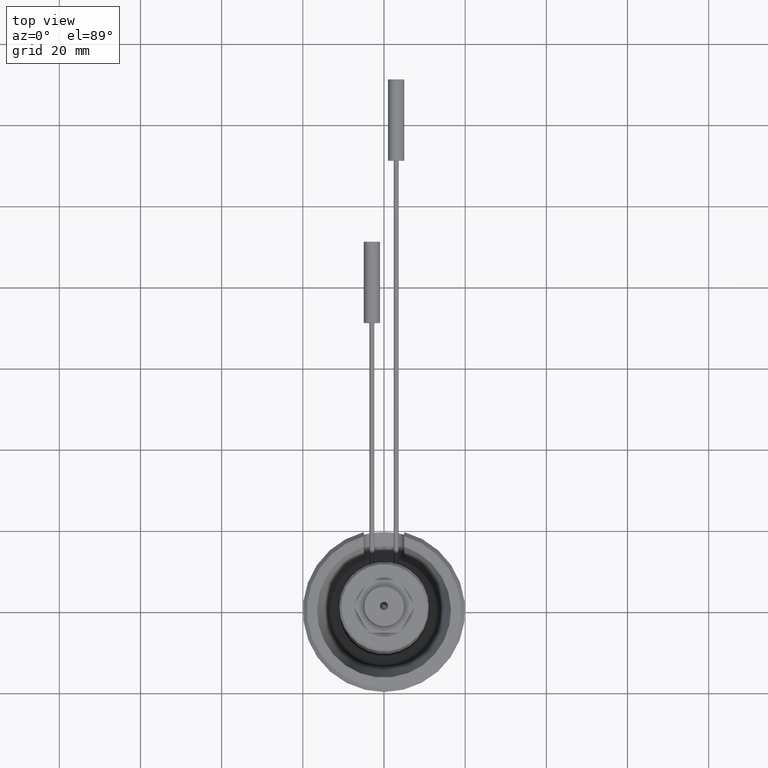
[diagram: clean part render]
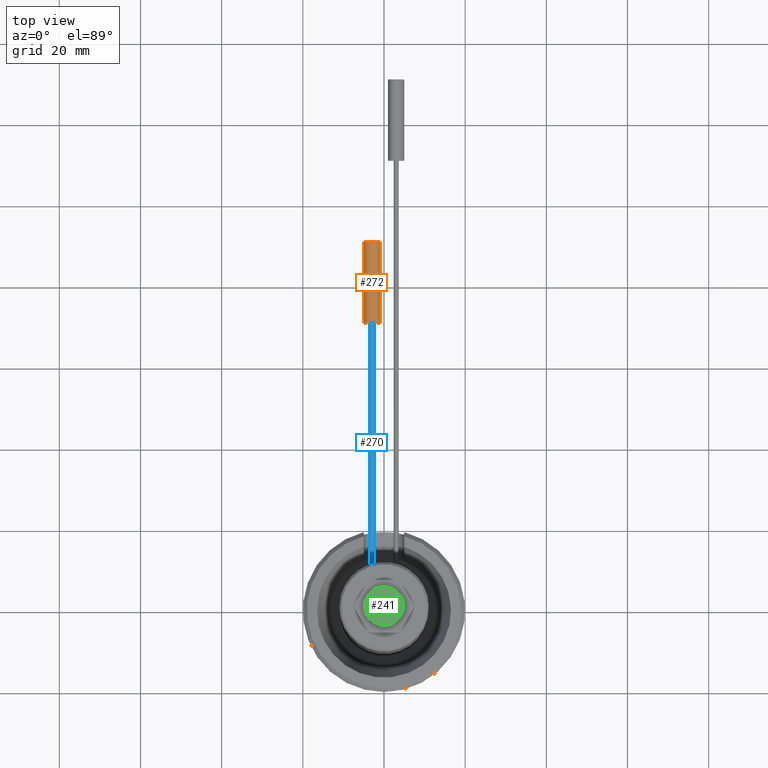
[diagram: same view with three faces highlighted in distinct colors, each labeled with its STEP entity id]
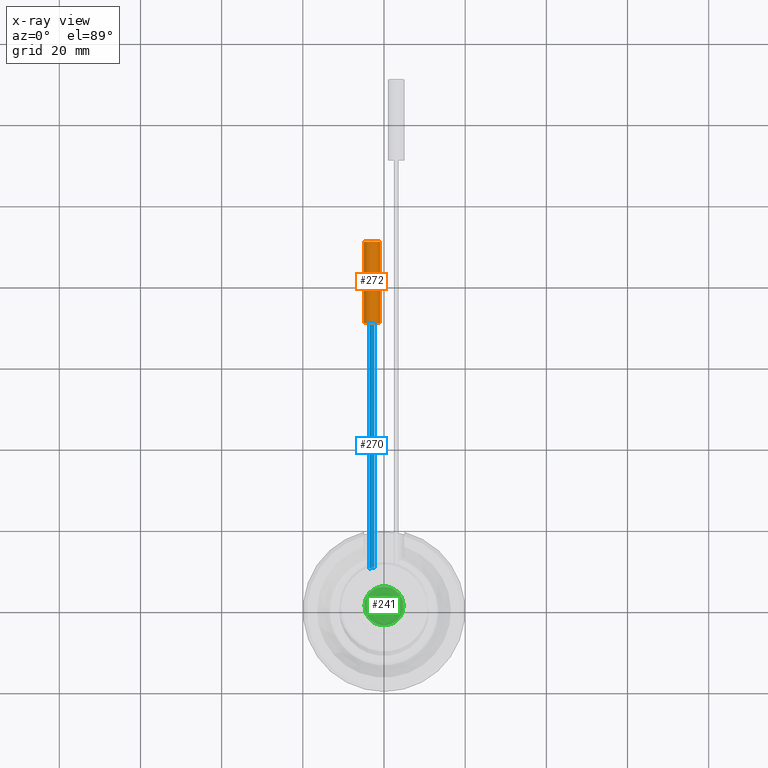
[diagram: x-ray of the same camera — body ghosted, the three highlighted faces saturated]
A machine part, top view with three faces highlighted in distinct colors.
The next image is the same camera in x-ray (body ghosted, the three faces saturated) — at least one of them is partly hidden behind the body in this view.
Their STEP definitions:

[orange] entity #272 — the highlighted cylindrical surface (bore or boss wall) has radius 2 mm, axis along (0, -1, 0).
#52=CYLINDRICAL_SURFACE('',#1222,2.);
#272=ADVANCED_FACE('',(#393,#394),#52,.T.);
#393=FACE_BOUND('',#484,.T.);
#394=FACE_BOUND('',#485,.T.);
#484=EDGE_LOOP('',(#714));
#485=EDGE_LOOP('',(#715));
#714=ORIENTED_EDGE('',*,*,#1039,.F.);
#715=ORIENTED_EDGE('',*,*,#1040,.T.);
#899=VERTEX_POINT('',#2240);
#900=VERTEX_POINT('',#2242);
#1039=EDGE_CURVE('',#899,#899,#1106,.T.);
#1040=EDGE_CURVE('',#900,#900,#1107,.T.);
#1106=CIRCLE('',#1220,2.);
#1107=CIRCLE('',#1221,2.);
#1220=AXIS2_PLACEMENT_3D('',#2239,#1515,#1516);
#1221=AXIS2_PLACEMENT_3D('',#2241,#1517,#1518);
#1222=AXIS2_PLACEMENT_3D('',#2243,#1519,#1520);
#1515=DIRECTION('',(0.,1.,0.));
#1516=DIRECTION('',(1.,0.,0.));
#1517=DIRECTION('',(0.,1.,0.));
#1518=DIRECTION('',(1.,0.,0.));
#1519=DIRECTION('',(0.,-1.,0.));
#1520=DIRECTION('',(0.,0.,-0.999999999999999));
#2239=CARTESIAN_POINT('',(-3.,91.,18.5));
#2240=CARTESIAN_POINT('',(-0.999999999999999,91.,18.5));
#2241=CARTESIAN_POINT('',(-3.,71.,18.5));
#2242=CARTESIAN_POINT('',(-0.999999999999999,71.,18.5));
#2243=CARTESIAN_POINT('',(-3.,91.,18.5));

[blue] entity #270 — the highlighted cylindrical surface (bore or boss wall) has radius 0.6 mm, axis along (0, -1, 0).
#50=CYLINDRICAL_SURFACE('',#1217,0.6);
#270=ADVANCED_FACE('',(#389,#390),#50,.T.);
#321=B_SPLINE_CURVE_WITH_KNOTS('',3,(#1801,#1802,#1803,#1804,#1805,#1806,
#1807,#1808,#1809,#1810,#1811,#1812,#1813,#1814,#1815,#1816,#1817,#1818,
#1819,#1820,#1821,#1822,#1823,#1824,#1825,#1826,#1827,#1828,#1829,#1830,
#1831,#1832,#1833,#1834,#1835,#1836,#1837,#1838,#1839,#1840,#1841,#1842,
#1843,#1844,#1845,#1846,#1847,#1848,#1849,#1850,#1851,#1852,#1853,#1854,
#1855,#1856,#1857,#1858),.UNSPECIFIED.,.T.,.F.,(1,3,3,3,3,3,3,3,3,3,3,3,
3,3,3,3,3,3,3,3,3,1),(-0.0334760659607021,0.,0.0569276184208162,0.11388798171723,
0.170189178404947,0.223994773815214,0.275023318518955,0.32479447673683,
0.375435942673917,0.428444094596675,0.484019015101014,0.541000746772207,
0.597629402742916,0.652691800182208,0.705997861087888,0.758026453272304,
0.809447894307852,0.860920961920237,0.913080990616137,0.966523934039298,
1.,1.05692761842082),.UNSPECIFIED.);
#389=FACE_BOUND('',#480,.T.);
#390=FACE_BOUND('',#481,.T.);
#480=EDGE_LOOP('',(#710));
#481=EDGE_LOOP('',(#711));
#710=ORIENTED_EDGE('',*,*,#1037,.F.);
#711=ORIENTED_EDGE('',*,*,#949,.T.);
#837=VERTEX_POINT('',#1859);
#897=VERTEX_POINT('',#2234);
#949=EDGE_CURVE('',#837,#837,#321,.T.);
#1037=EDGE_CURVE('',#897,#897,#1104,.T.);
#1104=CIRCLE('',#1216,0.6);
#1216=AXIS2_PLACEMENT_3D('',#2233,#1507,#1508);
#1217=AXIS2_PLACEMENT_3D('',#2235,#1509,#1510);
#1507=DIRECTION('',(0.,1.,0.));
#1508=DIRECTION('',(1.,0.,0.));
#1509=DIRECTION('',(0.,-1.,0.));
#1510=DIRECTION('',(0.,0.,-1.));
#1801=CARTESIAN_POINT('',(-2.99999999999991,10.5830052442584,17.8999999999996));
#1802=CARTESIAN_POINT('',(-3.06981681712979,10.5632140368882,17.8999999999996));
#1803=CARTESIAN_POINT('',(-3.14038450659972,10.5424227737473,17.9124970988472));
#1804=CARTESIAN_POINT('',(-3.20591448775793,10.5224575217571,17.9364405765748));
#1805=CARTESIAN_POINT('',(-3.27146261720385,10.5024867404637,17.9603906853607));
#1806=CARTESIAN_POINT('',(-3.33382981085157,10.4827847092571,17.9964888354275));
#1807=CARTESIAN_POINT('',(-3.3876192775582,10.4653731720525,18.0420138695711));
#1808=CARTESIAN_POINT('',(-3.44075567997196,10.4481730303855,18.0869861788774));
#1809=CARTESIAN_POINT('',(-3.48705359081985,10.43272799059,18.1425344552966));
#1810=CARTESIAN_POINT('',(-3.5219399223933,10.4209375385832,18.2040629840455));
#1811=CARTESIAN_POINT('',(-3.55529059017035,10.4096660912832,18.262883084313));
#1812=CARTESIAN_POINT('',(-3.57915482046363,10.4014329403698,18.3289382027011));
#1813=CARTESIAN_POINT('',(-3.59097724228668,10.39734977989,18.3963375714194));
#1814=CARTESIAN_POINT('',(-3.60220237963041,10.39347290611,18.4603318343604));
#1815=CARTESIAN_POINT('',(-3.60289005001189,10.3932330618097,18.5273519849324));
#1816=CARTESIAN_POINT('',(-3.59296868398482,10.396661773661,18.5915867884212));
#1817=CARTESIAN_POINT('',(-3.58328137018419,10.4000095997109,18.6543062462681));
#1818=CARTESIAN_POINT('',(-3.56326033680526,10.4069246310301,18.716062895263));
#1819=CARTESIAN_POINT('',(-3.53478046430455,10.4165890323642,18.7720475234187));
#1820=CARTESIAN_POINT('',(-3.5057920601981,10.4264259995527,18.8290318032705));
#1821=CARTESIAN_POINT('',(-3.46732907570817,10.4393411650476,18.8815408372879));
#1822=CARTESIAN_POINT('',(-3.42260264746866,10.453984461321,18.9259190091467));
#1823=CARTESIAN_POINT('',(-3.37580324197967,10.4693064440271,18.9723540172935));
#1824=CARTESIAN_POINT('',(-3.32095149567916,10.4868989700489,19.0111162295878));
#1825=CARTESIAN_POINT('',(-3.26232257871943,10.5051059676891,19.0396173317213));
#1826=CARTESIAN_POINT('',(-3.20090536269367,10.524178861497,19.0694739014394));
#1827=CARTESIAN_POINT('',(-3.1336983167243,10.5444253513799,19.088868258931));
#1828=CARTESIAN_POINT('',(-3.06598618430007,10.564077277154,19.0963604811534));
#1829=CARTESIAN_POINT('',(-2.99661772046592,10.5842099159223,19.1040359733831));
#1830=CARTESIAN_POINT('',(-2.92478068762943,10.6042751642352,19.0994009585023));
#1831=CARTESIAN_POINT('',(-2.85653800704422,10.622626352005,19.0825964783426));
#1832=CARTESIAN_POINT('',(-2.78874380432905,10.6408569392719,19.0659024340187));
#1833=CARTESIAN_POINT('',(-2.72256330115455,10.6579214838166,19.0366771898524));
#1834=CARTESIAN_POINT('',(-2.66401663073763,10.6725355652325,18.9971068050018));
#1835=CARTESIAN_POINT('',(-2.60707805025483,10.6867482445354,18.9586232921649));
#1836=CARTESIAN_POINT('',(-2.55573615457011,10.6990643438209,18.9092216508164));
#1837=CARTESIAN_POINT('',(-2.51483547133773,10.7086695042896,18.8530090368927));
#1838=CARTESIAN_POINT('',(-2.47521965706406,10.7179729247492,18.798562306495));
#1839=CARTESIAN_POINT('',(-2.44427888225215,10.725012553923,18.7361680065076));
#1840=CARTESIAN_POINT('',(-2.42492917387903,10.7293857467084,18.6711535712293));
#1841=CARTESIAN_POINT('',(-2.40603383409633,10.733656248466,18.6076658006813));
#1842=CARTESIAN_POINT('',(-2.39766002012662,10.7355128144675,18.5399010011442));
#1843=CARTESIAN_POINT('',(-2.40058147454186,10.7348595046273,18.4735910746605));
#1844=CARTESIAN_POINT('',(-2.40346989220308,10.7342135826266,18.4080310023314));
#1845=CARTESIAN_POINT('',(-2.41746976120564,10.7310967887802,18.3420888473413));
#1846=CARTESIAN_POINT('',(-2.44132064172829,10.725667975668,18.2811910087746));
#1847=CARTESIAN_POINT('',(-2.46520089217958,10.7202324775258,18.2202181807259));
#1848=CARTESIAN_POINT('',(-2.49958709380877,10.712325527574,18.162649352121));
#1849=CARTESIAN_POINT('',(-2.5414784747202,10.7023776406242,18.1130141981221));
#1850=CARTESIAN_POINT('',(-2.58393260100764,10.6922961193263,18.0627122732317));
#1851=CARTESIAN_POINT('',(-2.63520668837192,10.6798406558194,18.0192069291159));
#1852=CARTESIAN_POINT('',(-2.69099725920307,10.6657645647633,17.9856875403221));
#1853=CARTESIAN_POINT('',(-2.74815439445356,10.6513436863191,17.9513471094883));
#1854=CARTESIAN_POINT('',(-2.81154660528336,10.63483306504,17.9265595067595));
#1855=CARTESIAN_POINT('',(-2.87606909114748,10.6173549711284,17.912938563836));
#1856=CARTESIAN_POINT('',(-2.9168172067377,10.6063169681522,17.9043364811781));
#1857=CARTESIAN_POINT('',(-2.95854912963758,10.5947554615376,17.9));
#1858=CARTESIAN_POINT('',(-2.99999999999991,10.5830052442584,17.8999999999996));
#1859=CARTESIAN_POINT('',(-2.99999999999991,10.5830052442584,17.8999999999996));
#2233=CARTESIAN_POINT('',(-3.,71.,18.5));
#2234=CARTESIAN_POINT('',(-2.4,71.,18.5));
#2235=CARTESIAN_POINT('',(-3.,71.,18.5));

[green] entity #241 — the highlighted planar face has unit normal (0, 0, -1).
#62=PLANE('',#1156);
#241=ADVANCED_FACE('',(#357,#358),#62,.F.);
#357=FACE_BOUND('',#434,.T.);
#358=FACE_BOUND('',#435,.T.);
#434=EDGE_LOOP('',(#598));
#435=EDGE_LOOP('',(#599));
#598=ORIENTED_EDGE('',*,*,#965,.T.);
#599=ORIENTED_EDGE('',*,*,#966,.F.);
#846=VERTEX_POINT('',#1947);
#847=VERTEX_POINT('',#1949);
#965=EDGE_CURVE('',#846,#846,#1070,.T.);
#966=EDGE_CURVE('',#847,#847,#1071,.T.);
#1070=CIRCLE('',#1154,4.8);
#1071=CIRCLE('',#1155,1.00000000000001);
#1154=AXIS2_PLACEMENT_3D('',#1946,#1363,#1364);
#1155=AXIS2_PLACEMENT_3D('',#1948,#1365,#1366);
#1156=AXIS2_PLACEMENT_3D('',#1950,#1367,#1368);
#1363=DIRECTION('',(0.,0.,1.));
#1364=DIRECTION('',(-1.,0.,0.));
#1365=DIRECTION('',(0.,0.,1.));
#1366=DIRECTION('',(1.,0.,0.));
#1367=DIRECTION('',(0.,0.,-1.));
#1368=DIRECTION('',(-1.,0.,0.));
#1946=CARTESIAN_POINT('',(0.,0.,90.));
#1947=CARTESIAN_POINT('',(-4.8,0.,90.));
#1948=CARTESIAN_POINT('',(0.,0.,90.));
#1949=CARTESIAN_POINT('',(1.00000000000001,0.,90.));
#1950=CARTESIAN_POINT('',(-4.99999999999998,0.,90.));